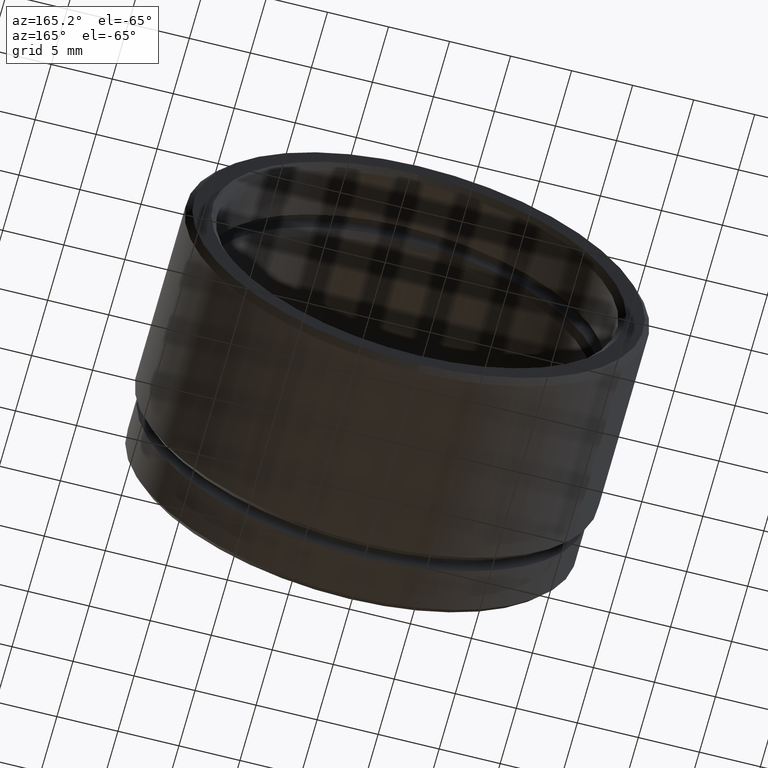
[diagram: clean part render]
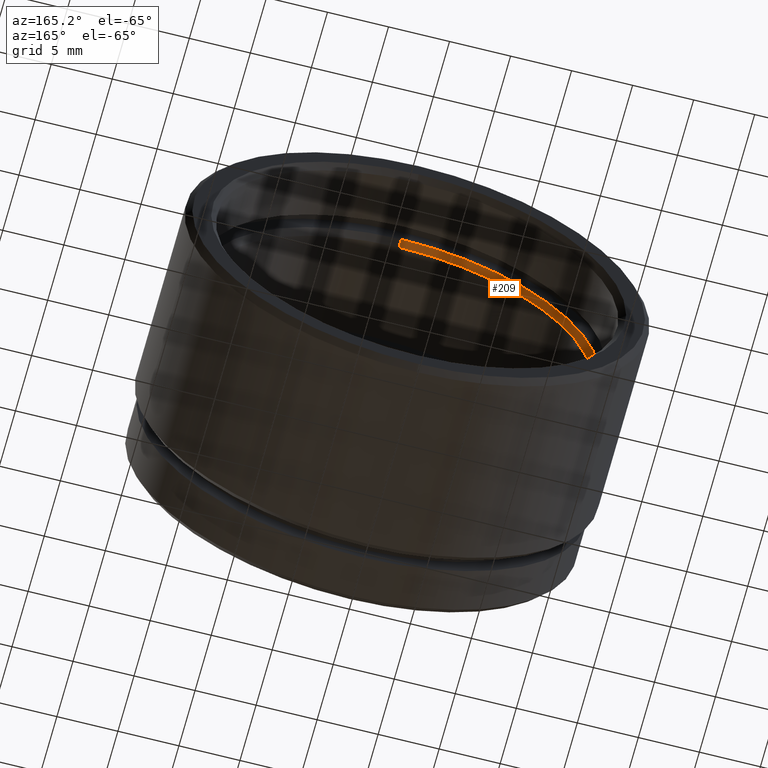
[diagram: same view with one face highlighted and labeled with its STEP entity id]
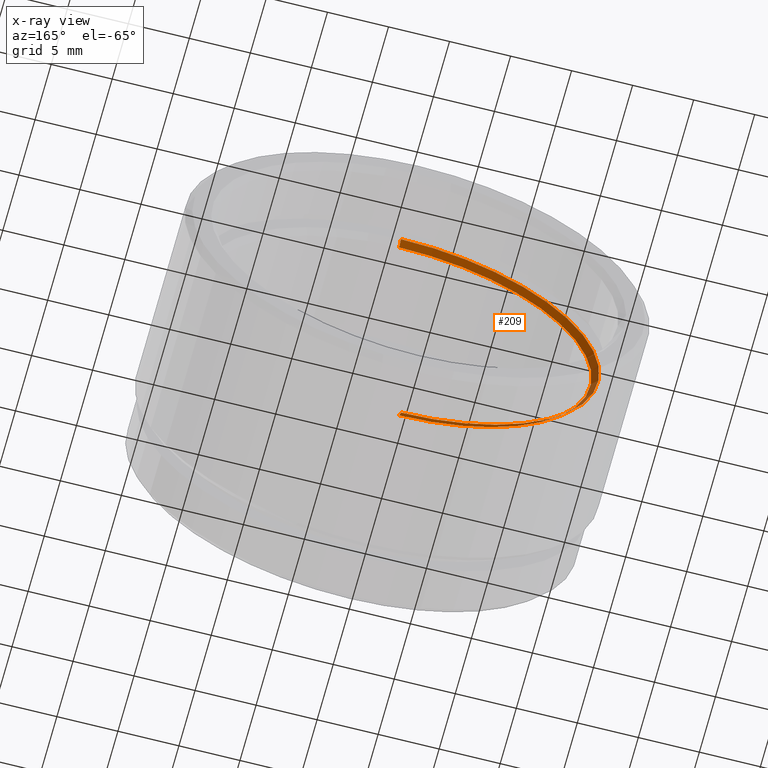
[diagram: x-ray of the same camera — body ghosted, the highlighted face saturated]
A machine part, auxiliary view. The second image highlights one B-rep face of the part: STEP entity #209.
The next image is the same camera in x-ray: the body ghosted, the highlighted face saturated — about 13% of this face is hidden behind the body in this view.
In plain terms, the highlighted conical surface has half-angle 45 deg.
Its self-contained STEP definition (entity closure, byte-faithful):
#91 = ORIENTED_EDGE ( 'NONE', *, *, #665, .F. ) ;
#147 = EDGE_CURVE ( 'NONE', #529, #293, #445, .T. ) ;
#150 = CONICAL_SURFACE ( 'NONE', #698, 16.24999999999999300, 0.7853981633974447300 ) ;
#162 = CARTESIAN_POINT ( 'NONE',  ( 1.928818708657081300E-015, 15.50000000000000400, 15.75000000000000000 ) ) ;
#168 = CARTESIAN_POINT ( 'NONE',  ( 0.0000000000000000000, 16.00000000000000000, 0.0000000000000000000 ) ) ;
#181 = VERTEX_POINT ( 'NONE', #717 ) ;
#209 = ADVANCED_FACE ( 'NONE', ( #920 ), #150, .F. ) ;
#260 = CARTESIAN_POINT ( 'NONE',  ( 0.0000000000000000000, 15.50000000000000400, -15.75000000000000000 ) ) ;
#293 = VERTEX_POINT ( 'NONE', #959 ) ;
#307 = EDGE_CURVE ( 'NONE', #794, #529, #661, .T. ) ;
#430 = DIRECTION ( 'NONE',  ( 8.659560562354904500E-017, 0.7071067811865500200, -0.7071067811865451300 ) ) ;
#439 = DIRECTION ( 'NONE',  ( 0.0000000000000000000, 0.0000000000000000000, 1.000000000000000000 ) ) ;
#445 = LINE ( 'NONE', #761, #631 ) ;
#448 = DIRECTION ( 'NONE',  ( -0.0000000000000000000, -1.000000000000000000, -0.0000000000000000000 ) ) ;
#458 = CARTESIAN_POINT ( 'NONE',  ( 0.0000000000000000000, 16.00000000000000000, 0.0000000000000000000 ) ) ;
#491 = VECTOR ( 'NONE', #430, 1000.000000000000100 ) ;
#529 = VERTEX_POINT ( 'NONE', #162 ) ;
#549 = ORIENTED_EDGE ( 'NONE', *, *, #677, .T. ) ;
#631 = VECTOR ( 'NONE', #1007, 1000.000000000000100 ) ;
#661 = CIRCLE ( 'NONE', #1053, 15.75000000000000000 ) ;
#665 = EDGE_CURVE ( 'NONE', #293, #181, #727, .T. ) ;
#677 = EDGE_CURVE ( 'NONE', #794, #181, #1004, .T. ) ;
#698 = AXIS2_PLACEMENT_3D ( 'NONE', #168, #1045, #969 ) ;
#717 = CARTESIAN_POINT ( 'NONE',  ( 1.990051048614448100E-015, 16.00000000000000000, -16.24999999999999300 ) ) ;
#727 = CIRCLE ( 'NONE', #878, 16.24999999999999300 ) ;
#730 = ORIENTED_EDGE ( 'NONE', *, *, #307, .F. ) ;
#761 = CARTESIAN_POINT ( 'NONE',  ( 0.0000000000000000000, 16.00000000000000000, 16.24999999999999300 ) ) ;
#794 = VERTEX_POINT ( 'NONE', #260 ) ;
#818 = CARTESIAN_POINT ( 'NONE',  ( 0.0000000000000000000, 15.50000000000000400, 0.0000000000000000000 ) ) ;
#855 = CARTESIAN_POINT ( 'NONE',  ( 1.990051048614448100E-015, 16.00000000000000000, -16.24999999999999300 ) ) ;
#878 = AXIS2_PLACEMENT_3D ( 'NONE', #458, #448, #439 ) ;
#882 = DIRECTION ( 'NONE',  ( 0.0000000000000000000, 0.0000000000000000000, 1.000000000000000000 ) ) ;
#920 = FACE_OUTER_BOUND ( 'NONE', #982, .T. ) ;
#959 = CARTESIAN_POINT ( 'NONE',  ( 0.0000000000000000000, 16.00000000000000000, 16.24999999999999300 ) ) ;
#969 = DIRECTION ( 'NONE',  ( 0.0000000000000000000, 0.0000000000000000000, 1.000000000000000000 ) ) ;
#982 = EDGE_LOOP ( 'NONE', ( #730, #549, #91, #1047 ) ) ;
#1004 = LINE ( 'NONE', #855, #491 ) ;
#1007 = DIRECTION ( 'NONE',  ( 0.0000000000000000000, 0.7071067811865500200, 0.7071067811865451300 ) ) ;
#1045 = DIRECTION ( 'NONE',  ( -0.0000000000000000000, 1.000000000000000000, -0.0000000000000000000 ) ) ;
#1047 = ORIENTED_EDGE ( 'NONE', *, *, #147, .F. ) ;
#1053 = AXIS2_PLACEMENT_3D ( 'NONE', #818, #1055, #882 ) ;
#1055 = DIRECTION ( 'NONE',  ( -0.0000000000000000000, 1.000000000000000000, -0.0000000000000000000 ) ) ;